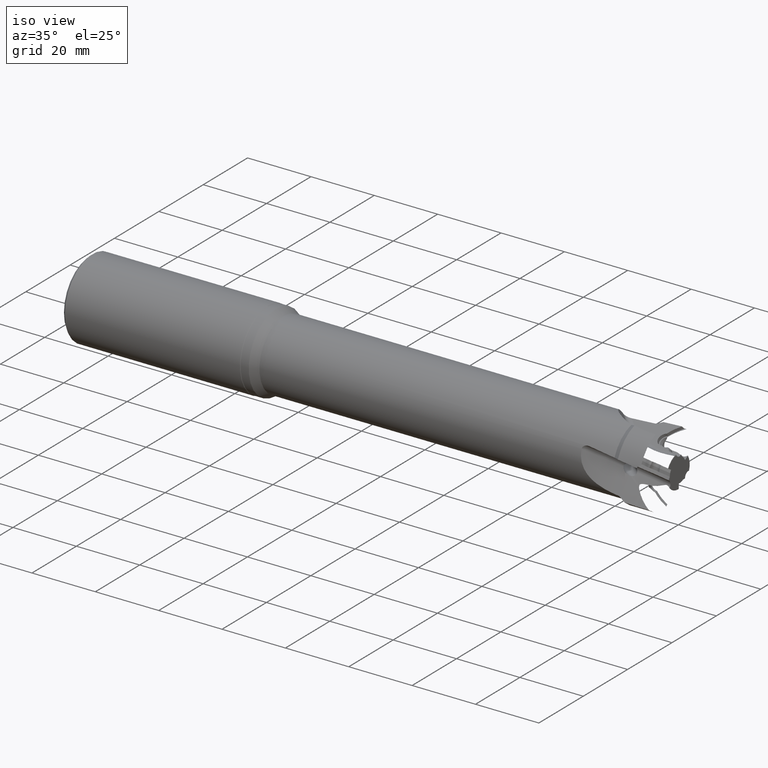
[diagram: clean part render]
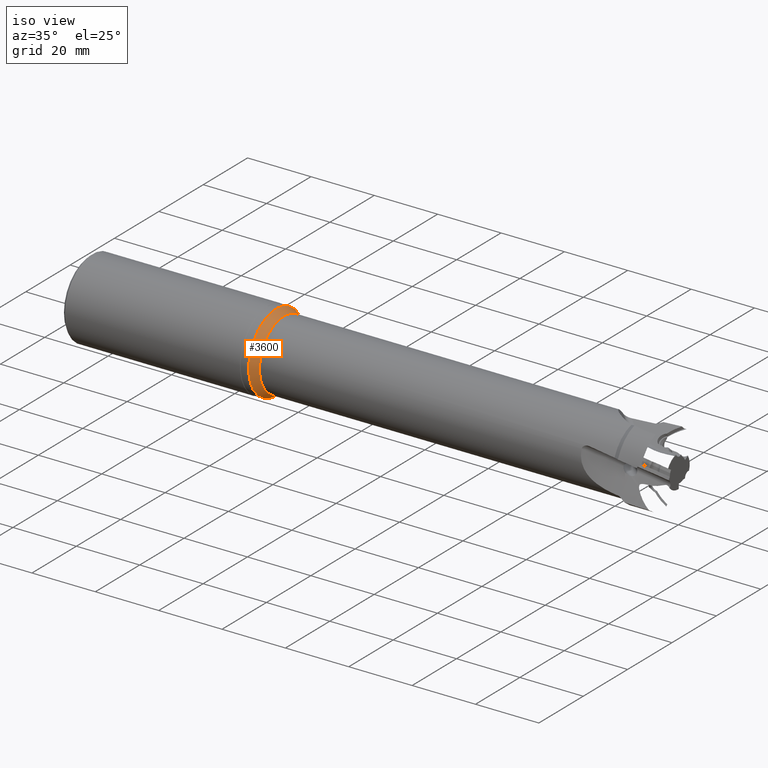
[diagram: same view with one face highlighted and labeled with its STEP entity id]
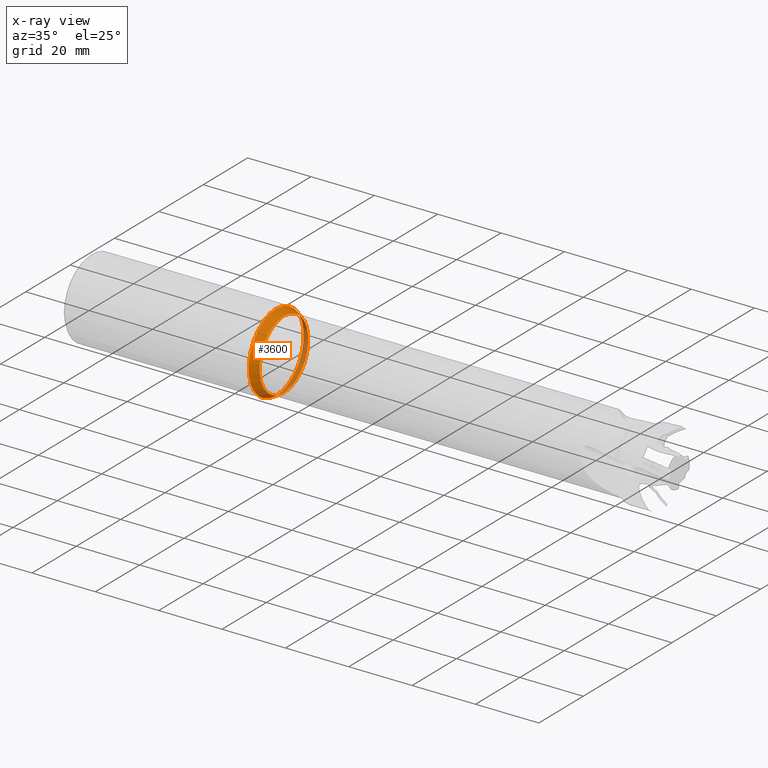
[diagram: x-ray of the same camera — body ghosted, the highlighted face saturated]
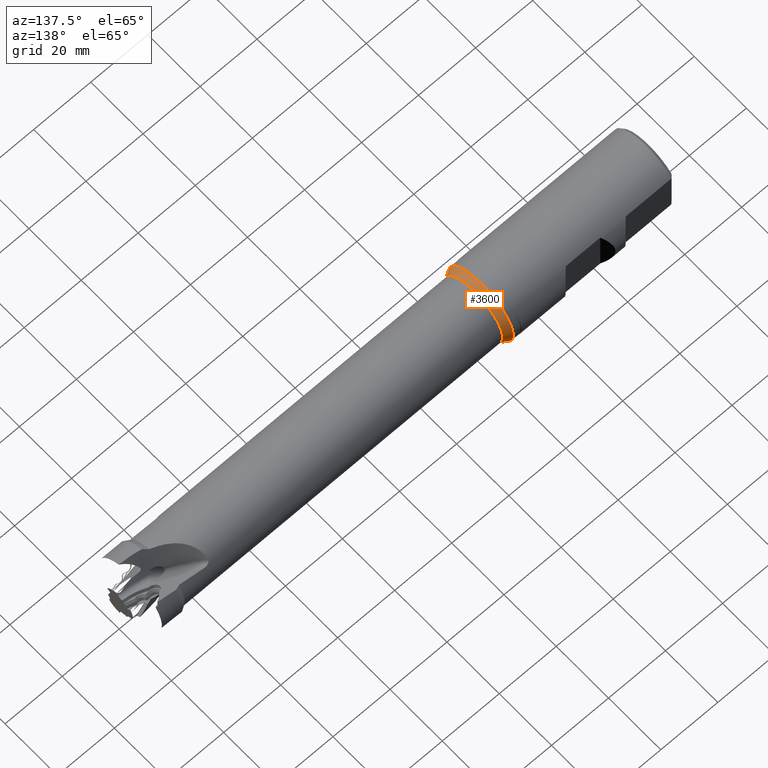
[diagram: same view with one face highlighted and labeled with its STEP entity id]
A machine part, iso view. The second image highlights one B-rep face of the part: STEP entity #3600.
The next image is the same camera in x-ray: the body ghosted, the highlighted face saturated — about 19% of this face is hidden behind the body in this view.
A second angle (auxiliary view) of the same face is appended — the face is thin or edge-on in the first view.
In plain terms, the highlighted conical surface has half-angle 30 deg.
Its self-contained STEP definition (entity closure, byte-faithful):
#685 = AXIS2_PLACEMENT_3D ( 'NONE', #1601, #4109, #1965 ) ;
#921 = CIRCLE ( 'NONE', #685, 12.39999999999998400 ) ;
#992 = EDGE_CURVE ( 'NONE', #1411, #1411, #921, .T. ) ;
#1065 = ORIENTED_EDGE ( 'NONE', *, *, #992, .T. ) ;
#1181 = AXIS2_PLACEMENT_3D ( 'NONE', #2800, #3173, #2438 ) ;
#1210 = CARTESIAN_POINT ( 'NONE',  ( -124.5000000000000300, 0.0000000000000000000, -10.99999999999998400 ) ) ;
#1411 = VERTEX_POINT ( 'NONE', #4433 ) ;
#1529 = CIRCLE ( 'NONE', #4625, 10.99999999999998400 ) ;
#1601 = CARTESIAN_POINT ( 'NONE',  ( -126.9248711305964400, 0.0000000000000000000, 0.0000000000000000000 ) ) ;
#1965 = DIRECTION ( 'NONE',  ( 0.0000000000000000000, 0.0000000000000000000, -1.000000000000000000 ) ) ;
#2079 = CARTESIAN_POINT ( 'NONE',  ( -124.5000000000000300, 0.0000000000000000000, 0.0000000000000000000 ) ) ;
#2257 = VERTEX_POINT ( 'NONE', #1210 ) ;
#2437 = DIRECTION ( 'NONE',  ( 0.0000000000000000000, 0.0000000000000000000, -1.000000000000000000 ) ) ;
#2438 = DIRECTION ( 'NONE',  ( 0.0000000000000000000, 0.0000000000000000000, 1.000000000000000000 ) ) ;
#2727 = ORIENTED_EDGE ( 'NONE', *, *, #4294, .F. ) ;
#2800 = CARTESIAN_POINT ( 'NONE',  ( -124.5000000000000300, 0.0000000000000000000, 0.0000000000000000000 ) ) ;
#3122 = EDGE_LOOP ( 'NONE', ( #1065 ) ) ;
#3173 = DIRECTION ( 'NONE',  ( -1.000000000000000000, 0.0000000000000000000, 0.0000000000000000000 ) ) ;
#3455 = CONICAL_SURFACE ( 'NONE', #1181, 10.99999999999998400, 0.5235987755983008100 ) ;
#3600 = ADVANCED_FACE ( 'NONE', ( #4611, #3684 ), #3455, .T. ) ;
#3684 = FACE_BOUND ( 'NONE', #4167, .T. ) ;
#4109 = DIRECTION ( 'NONE',  ( 1.000000000000000000, -0.0000000000000000000, -0.0000000000000000000 ) ) ;
#4167 = EDGE_LOOP ( 'NONE', ( #2727 ) ) ;
#4294 = EDGE_CURVE ( 'NONE', #2257, #2257, #1529, .T. ) ;
#4433 = CARTESIAN_POINT ( 'NONE',  ( -126.9248711305964400, 0.0000000000000000000, -12.39999999999998400 ) ) ;
#4579 = DIRECTION ( 'NONE',  ( 1.000000000000000000, -0.0000000000000000000, -0.0000000000000000000 ) ) ;
#4611 = FACE_OUTER_BOUND ( 'NONE', #3122, .T. ) ;
#4625 = AXIS2_PLACEMENT_3D ( 'NONE', #2079, #4579, #2437 ) ;